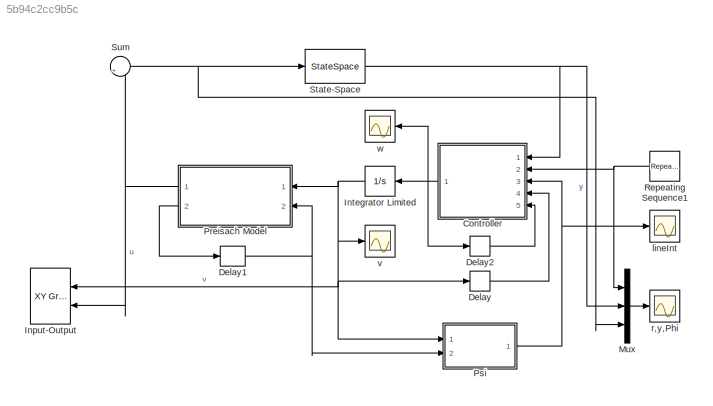
MODEL slx_5b94c2cc9b5c
KIND model
CONFIG AbsTol = auto
CONFIG EnableMultiTasking = off
CONFIG FixedStep = 0.05
CONFIG MaxStep = 0.1
CONFIG MinStep = 0.01
CONFIG RelTol = 1e-3
CONFIG SampleTimeConstraint = Unconstrained
CONFIG Solver = FixedStepAuto
CONFIG SolverName = FixedStepAuto
CONFIG StartTime = 0.0
CONFIG StopTime = simTotalTime
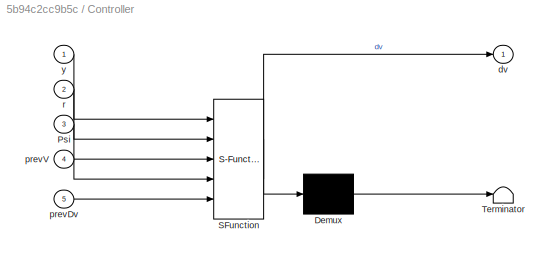
BLOCK [SubSystem] Controller
  ErrorFcn = Stateflow.Translate.translate
  PermitHierarchicalResolution = ExplicitOnly
  Ports = [5, 1]
  RequestExecContextInheritance = off
  SFBlockType = MATLAB Function
  TreatAsAtomicUnit = on
  Variant = off
BLOCK [Demux] Controller/ Demux 
  Outputs = 1
  Ports = [1, 1]
BLOCK [S-Function] Controller/ SFunction 
  EnableBusSupport = on
  FunctionName = sf_sfun
  Parameters = inputMax,inputMin
  PortCounts = [5 2]
  Ports = [5, 2]
  SFcnIsStateOwnerBlock = off
  SFunctionDeploymentMode = off
  Tag = Stateflow S-Function SwitchingPreisach 4
BLOCK [Terminator] Controller/ Terminator 
BLOCK [Inport] Controller/Psi
  IconDisplay = Port number
  Port = 3
BLOCK [Outport] Controller/dv
  IconDisplay = Port number
BLOCK [Inport] Controller/prevDv
  IconDisplay = Port number
  Port = 5
BLOCK [Inport] Controller/prevV
  IconDisplay = Port number
  Port = 4
BLOCK [Inport] Controller/r
  IconDisplay = Port number
  Port = 2
BLOCK [Inport] Controller/y
  IconDisplay = Port number
BLOCK [Delay] Delay
  DelayLength = 1
  InputPortMap = u0
  Ports = [1, 1]
BLOCK [Delay] Delay1
  DelayLength = 1
  InitialCondition = initialRelays
  InputPortMap = u0
  Ports = [1, 1]
BLOCK [Delay] Delay2
  DelayLength = 1
  InputPortMap = u0
  Ports = [1, 1]
BLOCK [Reference] Input-Output  REF=simulink/Sinks/XY Graph
  Ports = [2]
  SourceBlock = simulink/Sinks/XY Graph
  SourceProductBaseCode = SL
  SourceProductName = Simulink
  SourceType = XY scope.
BLOCK [Integrator] Integrator Limited
  InitialCondition = initialInput
  LowerSaturationLimit = inputMin*0.99
  Ports = [1, 1]
  UpperSaturationLimit = inputMax*0.99
BLOCK [Mux] Mux
  DisplayOption = bar
  Inputs = 3
  Ports = [3, 1]
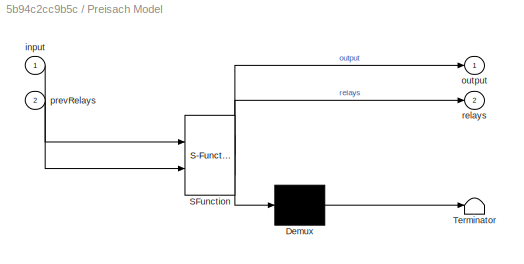
BLOCK [SubSystem] Preisach Model
  ErrorFcn = Stateflow.Translate.translate
  PermitHierarchicalResolution = ExplicitOnly
  Ports = [2, 2]
  RequestExecContextInheritance = off
  SFBlockType = MATLAB Function
  TreatAsAtomicUnit = on
  Variant = off
BLOCK [Demux] Preisach Model/ Demux 
  Outputs = 1
  Ports = [1, 1]
BLOCK [S-Function] Preisach Model/ SFunction 
  EnableBusSupport = on
  FunctionName = sf_sfun
  Parameters = gridArea,gridDen,gridLength,hysteronMax,hysteronMin,offset,weightFunc,xyGrid
  PortCounts = [2 3]
  Ports = [2, 3]
  SFcnIsStateOwnerBlock = off
  SFunctionDeploymentMode = off
  Tag = Stateflow S-Function SwitchingPreisach 2
BLOCK [Terminator] Preisach Model/ Terminator 
BLOCK [Inport] Preisach Model/input
  IconDisplay = Port number
BLOCK [Outport] Preisach Model/output
  IconDisplay = Port number
BLOCK [Inport] Preisach Model/prevRelays
  IconDisplay = Port number
  Port = 2
BLOCK [Outport] Preisach Model/relays
  IconDisplay = Port number
  Port = 2
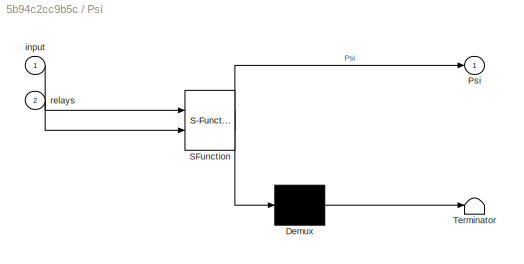
BLOCK [SubSystem] Psi
  ErrorFcn = Stateflow.Translate.translate
  PermitHierarchicalResolution = ExplicitOnly
  Ports = [2, 1]
  RequestExecContextInheritance = off
  SFBlockType = MATLAB Function
  TreatAsAtomicUnit = on
  Variant = off
BLOCK [Demux] Psi/ Demux 
  Outputs = 1
  Ports = [1, 1]
BLOCK [S-Function] Psi/ SFunction 
  EnableBusSupport = on
  FunctionName = sf_sfun
  Parameters = gridDen,gridLength,hysteronMax,hysteronMin,offset,weightFunc,xyGrid
  PortCounts = [2 2]
  Ports = [2, 2]
  SFcnIsStateOwnerBlock = off
  SFunctionDeploymentMode = off
  Tag = Stateflow S-Function SwitchingPreisach 3
BLOCK [Terminator] Psi/ Terminator 
BLOCK [Outport] Psi/Psi
  IconDisplay = Port number
BLOCK [Inport] Psi/input
  IconDisplay = Port number
BLOCK [Inport] Psi/relays
  IconDisplay = Port number
  Port = 2
BLOCK [Reference] Repeating Sequence1  REF=simulink/Sources/Repeating
Sequence
  Ports = [0, 1]
  SourceBlock = simulink/Sources/Repeating\nSequence
  SourceProductBaseCode = SL
  SourceProductName = Simulink
  SourceType = Repeating table
BLOCK [StateSpace] State-Space
  A = GA
  B = GB
  C = GC
  D = GD
  InitialCondition = Gx0
  Ports = [1, 1]
BLOCK [Sum] Sum
  IconShape = round
  InputSameDT = off
  Inputs = |++
  OutDataTypeStr = Inherit: Inherit via internal rule
  Ports = [2, 1]
  SaturateOnIntegerOverflow = off
BLOCK [Scope] lineInt
  NumInputPorts = 1
  Ports = [1]
  ScopeSpecificationString = Simulink.scopes.TimeScopeBlockCfg('CurrentConfiguration', extmgr.ConfigurationSet(extmgr.Configuration('Core','General UI',true),extmgr.Configuration('Core','Source UI',true),extmgr.Configuration('Sources','WiredSimulink',true,'DataLoggingVariableName','ScopeData3'),extmgr.Configuration('Visuals','Time Domain',true,'SerializedDisplays',{struct('MinYLimReal','-4.9893','MaxYLimReal','5.06057','YLabe...<+1495ch>
BLOCK [Scope] r,y,Phi
  NumInputPorts = 1
  Ports = [1]
  ScopeSpecificationString = Simulink.scopes.TimeScopeBlockCfg('CurrentConfiguration', extmgr.ConfigurationSet(extmgr.Configuration('Core','General UI',true),extmgr.Configuration('Core','Source UI',true),extmgr.Configuration('Sources','WiredSimulink',true,'DataLoggingVariableName','ScopeData1'),extmgr.Configuration('Visuals','Time Domain',true,'SerializedDisplays',{struct('MinYLimReal','-0.85699','MaxYLimReal','0.78768','YLab...<+1539ch>
BLOCK [Scope] v
  NumInputPorts = 1
  Ports = [1]
  ScopeSpecificationString = Simulink.scopes.TimeScopeBlockCfg('CurrentConfiguration', extmgr.ConfigurationSet(extmgr.Configuration('Core','General UI',true),extmgr.Configuration('Core','Source UI',true),extmgr.Configuration('Sources','WiredSimulink',true,'DataLoggingVariableName','ScopeData1'),extmgr.Configuration('Visuals','Time Domain',true,'SerializedDisplays',{struct('MinYLimReal','-1.22103','MaxYLimReal','1.23724','YLab...<+1485ch>
BLOCK [Scope] w
  NumInputPorts = 1
  Ports = [1]
  ScopeSpecificationString = Simulink.scopes.TimeScopeBlockCfg('CurrentConfiguration', extmgr.ConfigurationSet(extmgr.Configuration('Core','General UI',true),extmgr.Configuration('Core','Source UI',true),extmgr.Configuration('Sources','WiredSimulink',true,'DataLoggingVariableName','ScopeData2'),extmgr.Configuration('Visuals','Time Domain',true,'SerializedDisplays',{struct('MinYLimReal','-5.10021','MaxYLimReal','5.10045','YLab...<+1507ch>
NET Controller:1 -> Delay2:1, Integrator Limited:1, w:1
NET Delay1:1 -> Preisach Model:2, Psi:2
LINE Delay2:1 -> Controller:5
LINE Delay:1 -> Controller:4
NET Integrator Limited:1 -> Delay:1, Input-Output:1, Preisach Model:1, Psi:1, v:1
LINE Mux:1 -> r,y,Phi:1
NET Preisach Model:1 -> Input-Output:2, Sum:2
LINE Preisach Model:2 -> Delay1:1
NET Psi:1 -> Controller:3, lineInt:1
NET Repeating Sequence1:1 -> Controller:2, Mux:1
NET State-Space:1 -> Controller:1, Mux:2
NET Sum:1 -> Mux:3, State-Space:1
note: NET lines group one-source signal fan-out (src -> all destinations, sorted); 1:1 wires keep LINE
CHART Preisach Model states=1 transitions=1
  STATE_LABEL 'eML_blk_kernel()'
  STATE_LABEL 'SCRIPT:\nfunction [output, relays] = fcn(input, prevRelays, ...\n    weightFunc, offset, hysteronMin, hysteronMax, gridDen, xyGrid, gridLength, gridArea)\n\n    relays = prevRelays;\n    if( xyGrid(end) <= input )\n        relays(:,:) = hysteronMax*fliplr(triu(ones(gridDen, gridDen)));\n    elseif( input < xyGrid(1) )\n        relays(:,:) = hysteronMin*fliplr(triu(ones(gridDen, gridDen)));\n    else\n      ...<+512ch>'
CHART Psi states=1 transitions=1
  STATE_LABEL 'eML_blk_kernel()'
  STATE_LABEL 'SCRIPT:\nfunction Psi = fcn(input, relays,...\n     weightFunc, hysteronMin, hysteronMax, offset, gridDen, xyGrid, gridLength)\n\nPsi = [0; 0] + [(rand()-0.5); (rand()-0.5)]/10;\nif( xyGrid(end) <= input )\n    return;\nelseif( input < xyGrid(1) )\n    return;\nelse\n    idx0 = 1;\n    while( idx0 <= gridDen-1 )\n        if( xyGrid(idx0) <= input && input < xyGrid(idx0+1) )\n            col = idx0;\n           ...<+523ch>'
CHART Controller states=1 transitions=1
  STATE_LABEL 'eML_blk_kernel()'
  STATE_LABEL 'SCRIPT:\nfunction dv = fcn(y, r, Psi, prevV, prevDv, inputMin, inputMax)\n    \n    %%%%%%%%%%%%%%%%%%%%%%%%%%%%%%%%%%%%%%%%%%%%%%%%%%%%%%%%%%%%%%%%%%%%%%%\n    % Params\n    %%%%%%%%%%%%%%%%%%%%%%%%%%%%%%%%%%%%%%%%%%%%%%%%%%%%%%%%%%%%%%%%%%%%%%%\n    gain = 0.5;\n    threshold = 0.15;\n    error = y-r;\n    \n    %%%%%%%%%%%%%%%%%%%%%%%%%%%%%%%%%%%%%%%%%%%%%%%%%%%%%%%%%%%%%%%%%%%%%%%\n    % Selecting the la...<+606ch>'
